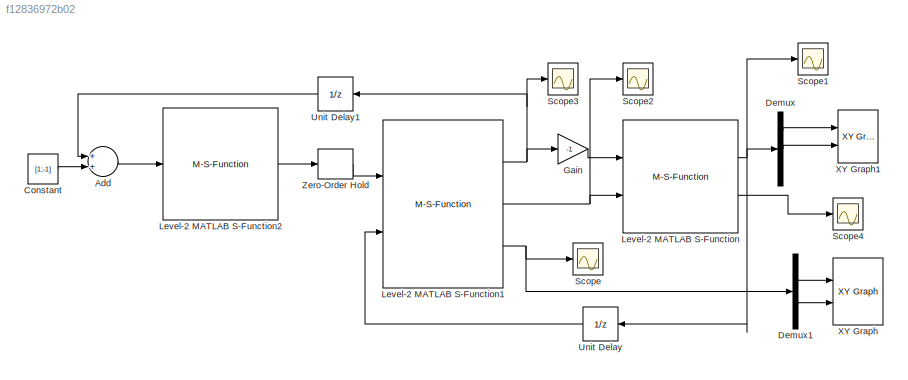
MODEL slx_f12836972b02
KIND model
CONFIG AbsTol = auto
CONFIG FixedStep = auto
CONFIG MaxStep = auto
CONFIG MinStep = auto
CONFIG RelTol = 1e-3
CONFIG SampleTimeConstraint = Unconstrained
CONFIG Solver = VariableStepAuto
CONFIG SolverMode = Auto
CONFIG SolverName = VariableStepAuto
CONFIG StartTime = 0.0
CONFIG StopTime = 10
BLOCK [Sum] Add
  InputSameDT = off
  OutDataTypeStr = Inherit: Inherit via internal rule
  Ports = [2, 1]
  SaturateOnIntegerOverflow = off
BLOCK [Constant] Constant
  Value = [1;-1]
BLOCK [Demux] Demux
  DisplayOption = bar
  Outputs = 3
  Ports = [1, 3]
BLOCK [Demux] Demux1
  DisplayOption = bar
  Outputs = 2
  Ports = [1, 2]
BLOCK [Gain] Gain
  Gain = -1
  OutDataTypeStr = Inherit: Inherit via internal rule
  ParamDataTypeStr = Inherit: Inherit via internal rule
  SaturateOnIntegerOverflow = off
BLOCK [M-S-Function] Level-2 MATLAB S-Function
  FunctionName = VirtualObject
  Parameters = mass,inertia,dimensions,tsampling,pose0,pose_dot0
  Ports = [2, 2]
BLOCK [M-S-Function] Level-2 MATLAB S-Function1
  FunctionName = HapticController
  Parameters = kWall,bWall,nWall,pWall,dimensions,tsampling,pBall0,vBall0
  Ports = [2, 3]
BLOCK [M-S-Function] Level-2 MATLAB S-Function2
  FunctionName = HapticDevice
  Parameters = mBall,bBall,vBall0,dimensions
  Ports = [1, 1]
BLOCK [Scope] Scope
  Ports = [1]
  ScopeSpecificationString = Simulink.scopes.TimeScopeBlockCfg('CurrentConfiguration', extmgr.ConfigurationSet(extmgr.Configuration('Core','General UI',true),extmgr.Configuration('Core','Source UI',true),extmgr.Configuration('Sources','WiredSimulink',true),extmgr.Configuration('Visuals','Time Domain',true,'SerializedDisplays',{struct('MinYLimReal','-5.16067','MaxYLimReal','6.16067','YLabelReal','','MinYLimMag','0.00000','MaxY...<+1819ch>
BLOCK [Scope] Scope1
  Ports = [1]
  ScopeSpecificationString = Simulink.scopes.TimeScopeBlockCfg('CurrentConfiguration', extmgr.ConfigurationSet(extmgr.Configuration('Core','General UI',true),extmgr.Configuration('Core','Source UI',true),extmgr.Configuration('Sources','WiredSimulink',true,'DataLoggingVariableName','ScopeData1'),extmgr.Configuration('Visuals','Time Domain',true,'SerializedDisplays',{struct('MinYLimReal','-3.74797','MaxYLimReal','5.38773','YLab...<+1550ch>
BLOCK [Scope] Scope2
  Ports = [1]
  ScopeSpecificationString = Simulink.scopes.TimeScopeBlockCfg('CurrentConfiguration', extmgr.ConfigurationSet(extmgr.Configuration('Core','General UI',true),extmgr.Configuration('Core','Source UI',true),extmgr.Configuration('Sources','WiredSimulink',true,'DataLoggingVariableName','ScopeData2'),extmgr.Configuration('Visuals','Time Domain',true,'SerializedDisplays',{struct('MinYLimReal','-71.58147','MaxYLimReal','72.3432','YLa...<+1460ch>
BLOCK [Scope] Scope3
  Ports = [1]
  ScopeSpecificationString = Simulink.scopes.TimeScopeBlockCfg('CurrentConfiguration', extmgr.ConfigurationSet(extmgr.Configuration('Core','General UI',true),extmgr.Configuration('Core','Source UI',true),extmgr.Configuration('Sources','WiredSimulink',true,'DataLoggingVariableName','ScopeData3'),extmgr.Configuration('Visuals','Time Domain',true,'SerializedDisplays',{struct('MinYLimReal','-219.55731','MaxYLimReal','219.55731','...<+1850ch>
BLOCK [Scope] Scope4
  Ports = [1]
  ScopeSpecificationString = Simulink.scopes.TimeScopeBlockCfg('CurrentConfiguration', extmgr.ConfigurationSet(extmgr.Configuration('Core','General UI',true),extmgr.Configuration('Core','Source UI',true),extmgr.Configuration('Sources','WiredSimulink',true,'DataLoggingVariableName','ScopeData1'),extmgr.Configuration('Visuals','Time Domain',true,'SerializedDisplays',{struct('MinYLimReal','-0.24062','MaxYLimReal','1.1656','YLabe...<+1546ch>
BLOCK [UnitDelay] Unit Delay
  InitialCondition = pose0
  InputProcessing = Elements as channels (sample based)
  SampleTime = tsampling
BLOCK [UnitDelay] Unit Delay1
  InitialCondition = [0;0]
  InputProcessing = Elements as channels (sample based)
  SampleTime = tsampling
BLOCK [Reference] XY Graph  REF=simulink/Sinks/XY Graph
  Ports = [2]
  SourceBlock = simulink/Sinks/XY Graph
  SourceType = XY scope.
BLOCK [Reference] XY Graph1  REF=simulink/Sinks/XY Graph
  Ports = [2]
  SourceBlock = simulink/Sinks/XY Graph
  SourceType = XY scope.
BLOCK [ZeroOrderHold] Zero-Order Hold
  SampleTime = tsampling
LINE Add:1 -> Level-2 MATLAB S-Function2:1
LINE Constant:1 -> Add:2
LINE Demux1:1 -> XY Graph:1
LINE Demux1:2 -> XY Graph:2
LINE Demux:1 -> XY Graph1:1
LINE Demux:2 -> XY Graph1:2
LINE Gain:1 -> Level-2 MATLAB S-Function:1
NET Level-2 MATLAB S-Function1:1 -> Gain:1, Scope3:1, Unit Delay1:1
NET Level-2 MATLAB S-Function1:2 -> Level-2 MATLAB S-Function:2, Scope2:1
NET Level-2 MATLAB S-Function1:3 -> Demux1:1, Scope:1
LINE Level-2 MATLAB S-Function2:1 -> Zero-Order Hold:1
NET Level-2 MATLAB S-Function:1 -> Demux:1, Scope1:1, Unit Delay:1
LINE Level-2 MATLAB S-Function:2 -> Scope4:1
LINE Unit Delay1:1 -> Add:1
LINE Unit Delay:1 -> Level-2 MATLAB S-Function1:2
LINE Zero-Order Hold:1 -> Level-2 MATLAB S-Function1:1
note: NET lines group one-source signal fan-out (src -> all destinations, sorted); 1:1 wires keep LINE
